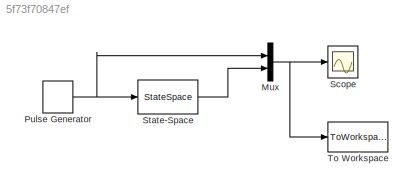
MODEL slx_5f73f70847ef
KIND model
BLOCK [Mux] Mux
  DisplayOption = bar
  Inputs = 2
  Ports = [2, 1]
BLOCK [DiscretePulseGenerator] Pulse Generator
  Period = 0.1
  Ports = [0, 1]
  PulseType = Time based
  PulseWidth = 50
BLOCK [Scope] Scope
  DataFormat = StructureWithTime
  Floating = off
  NumInputPorts = 1
  Ports = [1]
  SampleTime = 0
  ShowLegends = off
  YMax = 3
  YMin = -3
  ZoomMode = xonly
BLOCK [StateSpace] State-Space
  A = A
  B = B
  C = C
  D = D
BLOCK [ToWorkspace] To Workspace
  MaxDataPoints = inf
  Ports = [1]
  SampleTime = -1
  VariableName = out_sspace
NET Mux:1 -> Scope:1, To Workspace:1
NET Pulse Generator:1 -> Mux:1, State-Space:1
LINE State-Space:1 -> Mux:2
note: NET lines group one-source signal fan-out (src -> all destinations, sorted); 1:1 wires keep LINE
